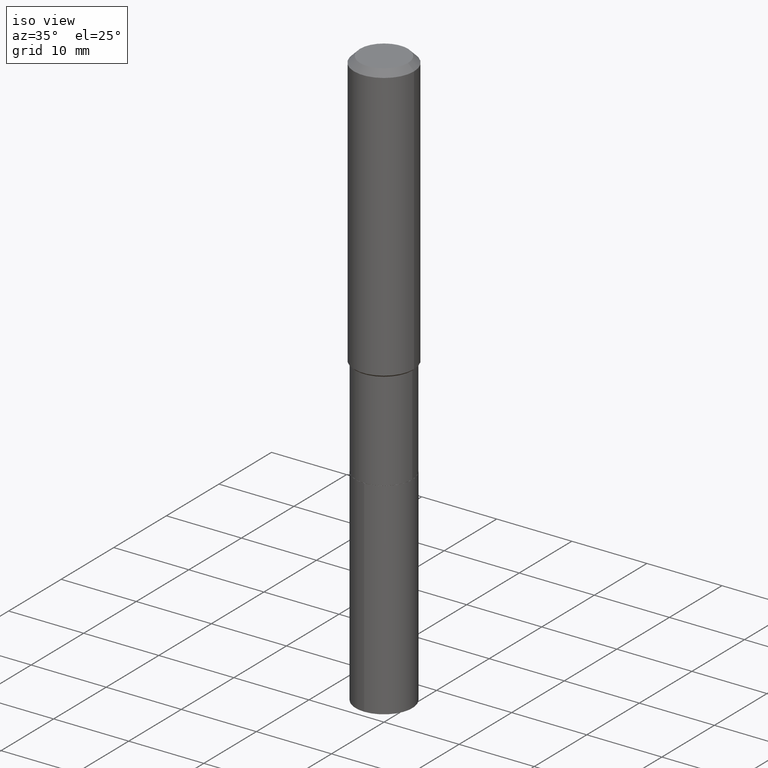
[diagram: clean part render]
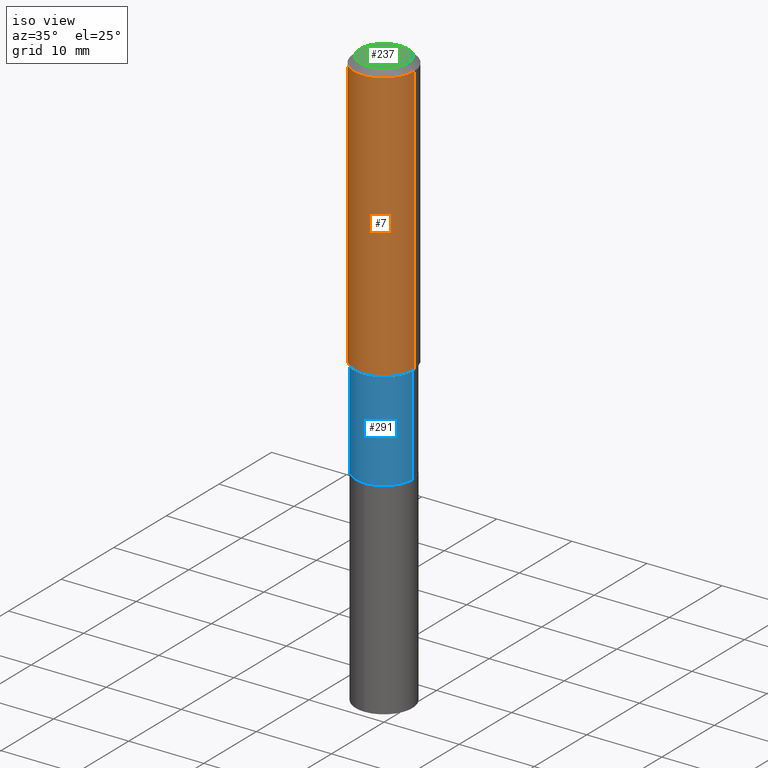
[diagram: same view with three faces highlighted in distinct colors, each labeled with its STEP entity id]
A machine part, iso view with three faces highlighted in distinct colors.
Their STEP definitions:

[orange] entity #7 — the highlighted cylindrical surface (partial cylindrical patch) has radius 4.0005 mm, axis along (-0, 0, 1).
#3 = CYLINDRICAL_SURFACE ( 'NONE', #223, 0.1575000000000000844 ) ;
#4 = DIRECTION ( 'NONE',  ( -2.445468806185136877E-29, 3.491481338843145188E-15, 1.000000000000000000 ) ) ;
#7 = ADVANCED_FACE ( 'NONE', ( #159 ), #3, .T. ) ;
#15 = DIRECTION ( 'NONE',  ( -2.445468806185136877E-29, 3.491481338843145188E-15, 1.000000000000000000 ) ) ;
#16 = VERTEX_POINT ( 'NONE', #189 ) ;
#20 = ORIENTED_EDGE ( 'NONE', *, *, #56, .T. ) ;
#56 = EDGE_CURVE ( 'NONE', #168, #156, #272, .T. ) ;
#57 = CARTESIAN_POINT ( 'NONE',  ( -0.1575000000000000011, -1.454029650871768556E-15, -0.03150000000000019451 ) ) ;
#106 = ORIENTED_EDGE ( 'NONE', *, *, #197, .F. ) ;
#112 = DIRECTION ( 'NONE',  ( -2.445468806185136597E-29, 3.491481338843145583E-15, 1.000000000000000000 ) ) ;
#127 = DIRECTION ( 'NONE',  ( 1.000000000000000000, -6.982962677686267499E-15, 0.000000000000000000 ) ) ;
#138 = EDGE_CURVE ( 'NONE', #395, #16, #171, .T. ) ;
#149 = DIRECTION ( 'NONE',  ( -2.445468806185136597E-29, 3.491481338843145583E-15, 1.000000000000000000 ) ) ;
#150 = CARTESIAN_POINT ( 'NONE',  ( 0.1575000000000000844, -1.099816621735587677E-15, 7.679978421878603638E-30 ) ) ;
#152 = CARTESIAN_POINT ( 'NONE',  ( 0.000000000000000000, 0.000000000000000000, 0.000000000000000000 ) ) ;
#153 = AXIS2_PLACEMENT_3D ( 'NONE', #326, #112, #442 ) ;
#156 = VERTEX_POINT ( 'NONE', #289 ) ;
#159 = FACE_OUTER_BOUND ( 'NONE', #264, .T. ) ;
#168 = VERTEX_POINT ( 'NONE', #340 ) ;
#171 = CIRCLE ( 'NONE', #153, 0.1575000000000000011 ) ;
#183 = LINE ( 'NONE', #150, #475 ) ;
#185 = ORIENTED_EDGE ( 'NONE', *, *, #278, .T. ) ;
#189 = CARTESIAN_POINT ( 'NONE',  ( 0.1575000000000000011, -1.209798283909146741E-15, -0.03150000000000019451 ) ) ;
#197 = EDGE_CURVE ( 'NONE', #168, #395, #273, .T. ) ;
#223 = AXIS2_PLACEMENT_3D ( 'NONE', #152, #149, #262 ) ;
#225 = ORIENTED_EDGE ( 'NONE', *, *, #138, .F. ) ;
#243 = CARTESIAN_POINT ( 'NONE',  ( 3.527466479481750238E-29, -5.036287257214294044E-15, -1.442449999999999788 ) ) ;
#259 = VECTOR ( 'NONE', #15, 39.37007874015748143 ) ;
#262 = DIRECTION ( 'NONE',  ( 1.000000000000000000, -6.982962677686267499E-15, 4.876176775795936353E-29 ) ) ;
#264 = EDGE_LOOP ( 'NONE', ( #106, #20, #185, #225 ) ) ;
#272 = CIRCLE ( 'NONE', #308, 0.1575000000000001676 ) ;
#273 = LINE ( 'NONE', #274, #259 ) ;
#274 = CARTESIAN_POINT ( 'NONE',  ( -0.1575000000000000844, 1.119104808822158392E-15, -7.747322767151481189E-30 ) ) ;
#278 = EDGE_CURVE ( 'NONE', #156, #16, #183, .T. ) ;
#289 = CARTESIAN_POINT ( 'NONE',  ( 0.1575000000000001676, -6.136103878949882313E-15, -1.442449999999999788 ) ) ;
#308 = AXIS2_PLACEMENT_3D ( 'NONE', #243, #456, #127 ) ;
#326 = CARTESIAN_POINT ( 'NONE',  ( 7.703226739483228723E-31, -1.099816621735597661E-16, -0.03150000000000019451 ) ) ;
#340 = CARTESIAN_POINT ( 'NONE',  ( -0.1575000000000001676, -3.917182448392135652E-15, -1.442449999999999788 ) ) ;
#395 = VERTEX_POINT ( 'NONE', #57 ) ;
#442 = DIRECTION ( 'NONE',  ( 1.000000000000000000, -6.982962677686265922E-15, 0.000000000000000000 ) ) ;
#456 = DIRECTION ( 'NONE',  ( -2.445468806185136597E-29, 3.491481338843145583E-15, 1.000000000000000000 ) ) ;
#475 = VECTOR ( 'NONE', #4, 39.37007874015748143 ) ;

[blue] entity #291 — the highlighted cylindrical surface (edge-blend (fillet) strip) has radius 3.7706 mm, axis along (-0, 0, 1).
#12 = EDGE_CURVE ( 'NONE', #297, #216, #461, .T. ) ;
#14 = CIRCLE ( 'NONE', #286, 0.1484499999999999154 ) ;
#28 = VECTOR ( 'NONE', #200, 39.37007874015748143 ) ;
#43 = LINE ( 'NONE', #459, #28 ) ;
#85 = DIRECTION ( 'NONE',  ( 1.000000000000000000, -6.982962677686266711E-15, 4.876176775795936353E-29 ) ) ;
#109 = CARTESIAN_POINT ( 'NONE',  ( -0.1484500000000000264, -4.914759527851199198E-15, -1.968000000000000194 ) ) ;
#141 = ORIENTED_EDGE ( 'NONE', *, *, #330, .T. ) ;
#157 = CYLINDRICAL_SURFACE ( 'NONE', #382, 0.1484499999999999431 ) ;
#158 = DIRECTION ( 'NONE',  ( -2.445468806185136877E-29, 3.491481338843145188E-15, 1.000000000000000000 ) ) ;
#161 = DIRECTION ( 'NONE',  ( -2.445468806185136597E-29, 3.491481338843145583E-15, 1.000000000000000000 ) ) ;
#180 = VECTOR ( 'NONE', #158, 39.37007874015748143 ) ;
#190 = LINE ( 'NONE', #194, #180 ) ;
#194 = CARTESIAN_POINT ( 'NONE',  ( 0.1484499999999999431, -1.036620809502525896E-15, 7.238684423669065009E-30 ) ) ;
#200 = DIRECTION ( 'NONE',  ( -2.445468806185136877E-29, 3.491481338843145188E-15, 1.000000000000000000 ) ) ;
#210 = EDGE_CURVE ( 'NONE', #297, #392, #43, .T. ) ;
#216 = VERTEX_POINT ( 'NONE', #339 ) ;
#228 = DIRECTION ( 'NONE',  ( 1.000000000000000000, -6.982962677686268288E-15, 0.000000000000000000 ) ) ;
#252 = AXIS2_PLACEMENT_3D ( 'NONE', #298, #367, #228 ) ;
#265 = DIRECTION ( 'NONE',  ( -2.445468806185136597E-29, 3.491481338843145583E-15, 1.000000000000000000 ) ) ;
#282 = CARTESIAN_POINT ( 'NONE',  ( -0.1484499999999999154, -4.914759527851200776E-15, -1.451500000000000012 ) ) ;
#284 = ORIENTED_EDGE ( 'NONE', *, *, #375, .F. ) ;
#286 = AXIS2_PLACEMENT_3D ( 'NONE', #458, #161, #304 ) ;
#291 = ADVANCED_FACE ( 'NONE', ( #324 ), #157, .T. ) ;
#297 = VERTEX_POINT ( 'NONE', #109 ) ;
#298 = CARTESIAN_POINT ( 'NONE',  ( 4.812682610572349594E-29, -6.871235274843310993E-15, -1.968000000000000194 ) ) ;
#304 = DIRECTION ( 'NONE',  ( 1.000000000000000000, -6.982962677686265133E-15, 0.000000000000000000 ) ) ;
#324 = FACE_OUTER_BOUND ( 'NONE', #425, .T. ) ;
#330 = EDGE_CURVE ( 'NONE', #216, #410, #190, .T. ) ;
#339 = CARTESIAN_POINT ( 'NONE',  ( 0.1484499999999999986, -7.907856084345836888E-15, -1.968000000000000194 ) ) ;
#367 = DIRECTION ( 'NONE',  ( -2.445468806185136597E-29, 3.491481338843145583E-15, 1.000000000000000000 ) ) ;
#375 = EDGE_CURVE ( 'NONE', #392, #410, #14, .T. ) ;
#382 = AXIS2_PLACEMENT_3D ( 'NONE', #449, #265, #85 ) ;
#392 = VERTEX_POINT ( 'NONE', #282 ) ;
#410 = VERTEX_POINT ( 'NONE', #430 ) ;
#414 = ORIENTED_EDGE ( 'NONE', *, *, #210, .F. ) ;
#425 = EDGE_LOOP ( 'NONE', ( #414, #429, #141, #284 ) ) ;
#429 = ORIENTED_EDGE ( 'NONE', *, *, #12, .T. ) ;
#430 = CARTESIAN_POINT ( 'NONE',  ( 0.1484499999999999154, -6.104505972833351915E-15, -1.451500000000000012 ) ) ;
#449 = CARTESIAN_POINT ( 'NONE',  ( 0.000000000000000000, 0.000000000000000000, 0.000000000000000000 ) ) ;
#458 = CARTESIAN_POINT ( 'NONE',  ( 3.549597972177726133E-29, -5.067885163330826020E-15, -1.451500000000000012 ) ) ;
#459 = CARTESIAN_POINT ( 'NONE',  ( -0.1484499999999999431, 1.054800691235868322E-15, -7.302159141483405952E-30 ) ) ;
#461 = CIRCLE ( 'NONE', #252, 0.1484499999999999986 ) ;

[green] entity #237 — the highlighted planar face has unit normal (0, -0, -1).
#37 = VERTEX_POINT ( 'NONE', #482 ) ;
#51 = CIRCLE ( 'NONE', #358, 0.1260000000000000009 ) ;
#53 = ORIENTED_EDGE ( 'NONE', *, *, #419, .T. ) ;
#74 = DIRECTION ( 'NONE',  ( -1.000000000000000000, 6.982962677686265922E-15, -4.876176775795935793E-29 ) ) ;
#79 = CARTESIAN_POINT ( 'NONE',  ( -4.719860820353100843E-47, 6.738710358733633822E-33, 1.930043355456229866E-18 ) ) ;
#93 = AXIS2_PLACEMENT_3D ( 'NONE', #79, #412, #74 ) ;
#95 = DIRECTION ( 'NONE',  ( 1.000000000000000000, -6.982962677686265922E-15, 4.876281427513067258E-29 ) ) ;
#129 = DIRECTION ( 'NONE',  ( -2.445468806185136597E-29, 3.491481338843145583E-15, 1.000000000000000000 ) ) ;
#134 = DIRECTION ( 'NONE',  ( -2.445468806185136597E-29, 3.491481338843145583E-15, 1.000000000000000000 ) ) ;
#166 = ORIENTED_EDGE ( 'NONE', *, *, #466, .T. ) ;
#212 = CARTESIAN_POINT ( 'NONE',  ( -9.439721640706201686E-47, 1.347742071746726764E-32, 3.860086710912459732E-18 ) ) ;
#237 = ADVANCED_FACE ( 'NONE', ( #485 ), #365, .F. ) ;
#248 = CIRCLE ( 'NONE', #428, 0.1260000000000000009 ) ;
#250 = EDGE_LOOP ( 'NONE', ( #53, #166 ) ) ;
#347 = CARTESIAN_POINT ( 'NONE',  ( -9.439721640706201686E-47, 1.347742071746726764E-32, 3.860086710912459732E-18 ) ) ;
#358 = AXIS2_PLACEMENT_3D ( 'NONE', #212, #129, #95 ) ;
#365 = PLANE ( 'NONE',  #93 ) ;
#381 = DIRECTION ( 'NONE',  ( 1.000000000000000000, -6.982962677686265922E-15, 4.876281427513067258E-29 ) ) ;
#389 = VERTEX_POINT ( 'NONE', #464 ) ;
#412 = DIRECTION ( 'NONE',  ( 2.438088387897960049E-29, -3.491481338843145188E-15, -1.000000000000000000 ) ) ;
#419 = EDGE_CURVE ( 'NONE', #37, #389, #248, .T. ) ;
#428 = AXIS2_PLACEMENT_3D ( 'NONE', #347, #134, #381 ) ;
#464 = CARTESIAN_POINT ( 'NONE',  ( 0.1260000000000000009, -1.027466422270894443E-15, 3.860086710919128072E-18 ) ) ;
#466 = EDGE_CURVE ( 'NONE', #389, #37, #51, .T. ) ;
#482 = CARTESIAN_POINT ( 'NONE',  ( -0.1260000000000000009, 9.348441284752484904E-16, 3.860086710906114178E-18 ) ) ;
#485 = FACE_OUTER_BOUND ( 'NONE', #250, .T. ) ;